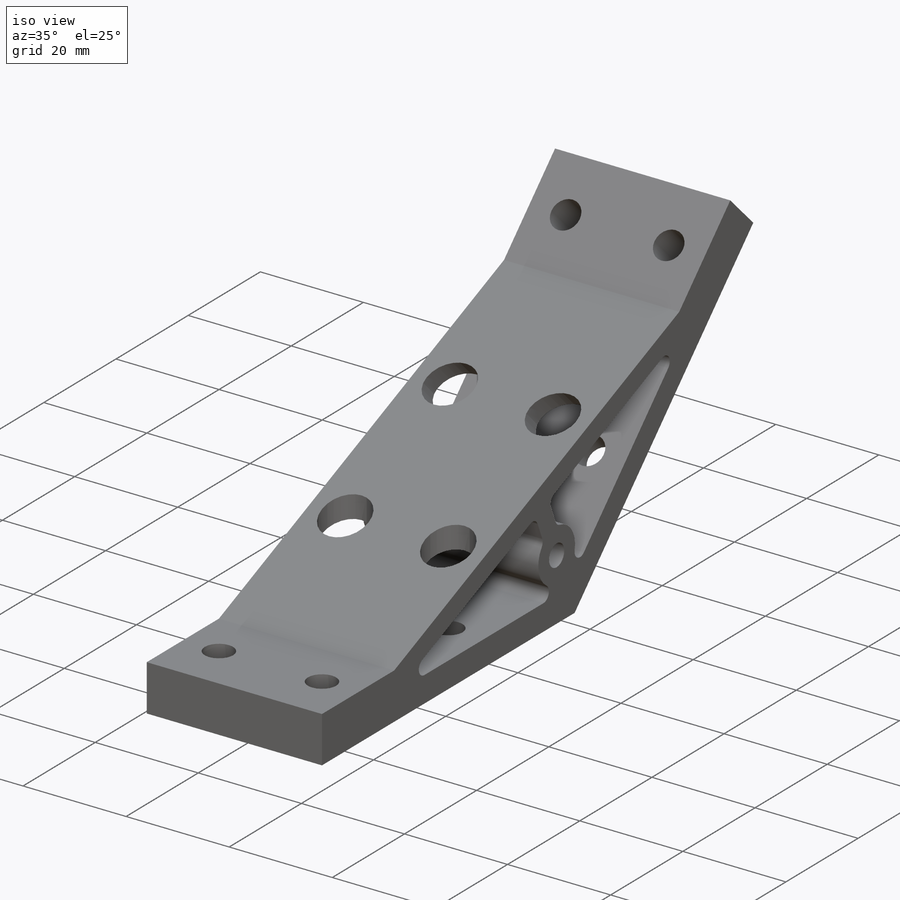
[diagram: iso view]
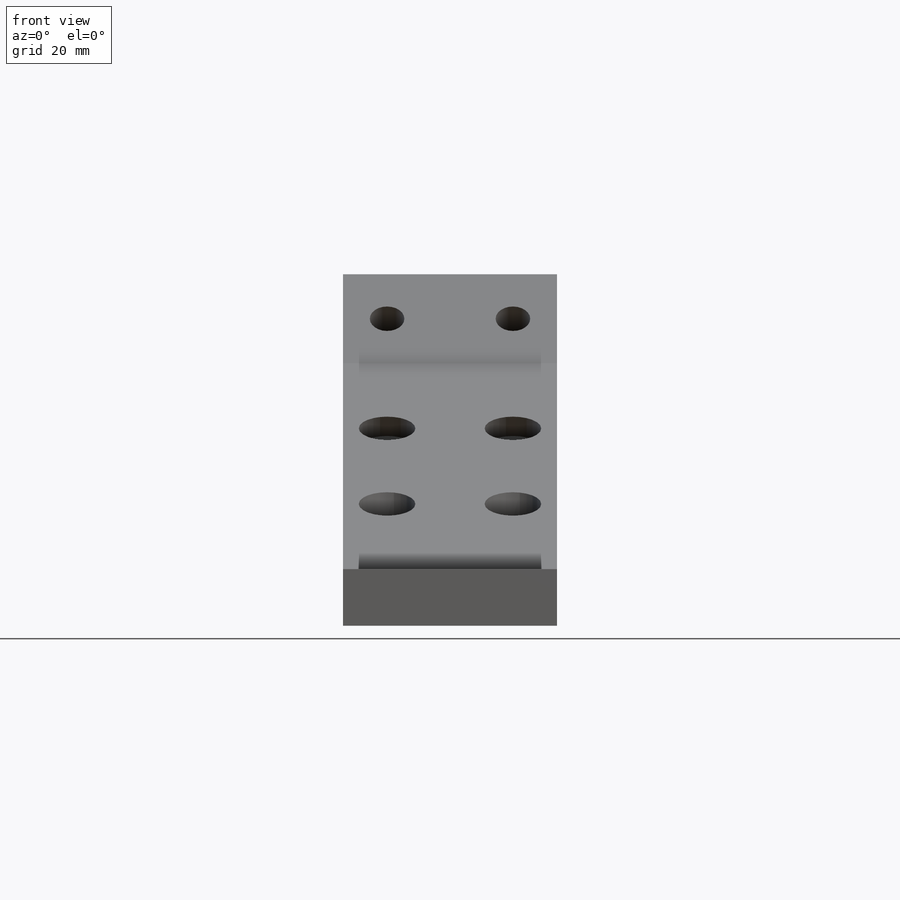
[diagram: front view]
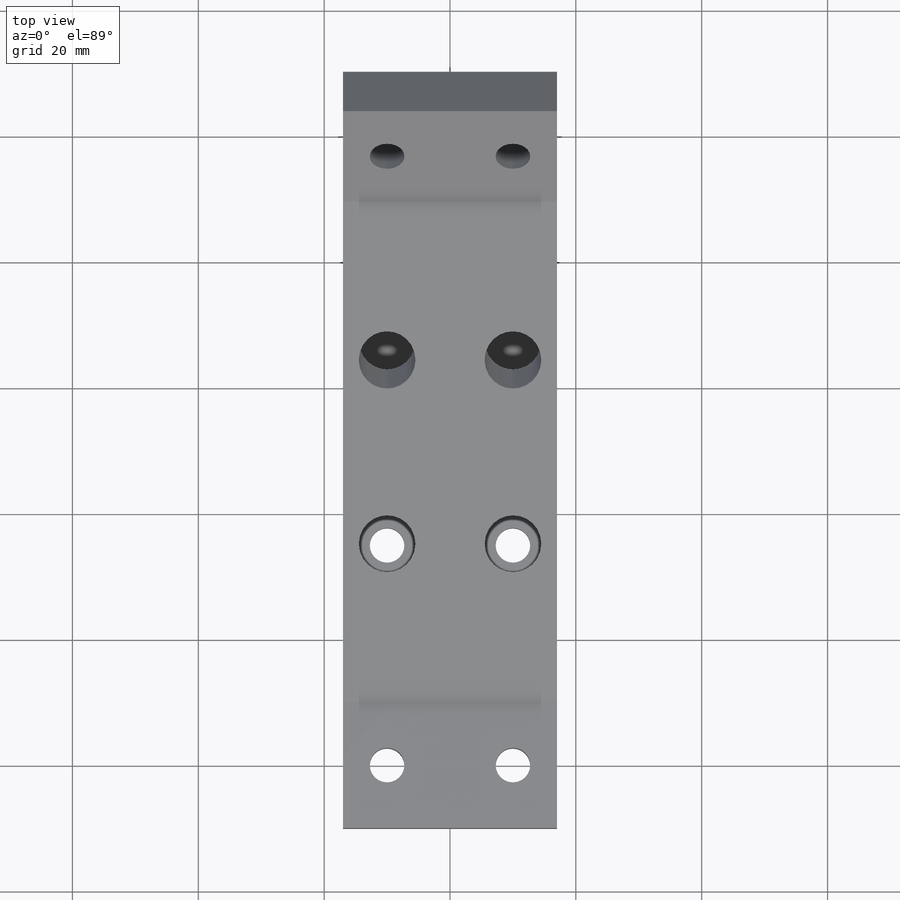
[diagram: top view]
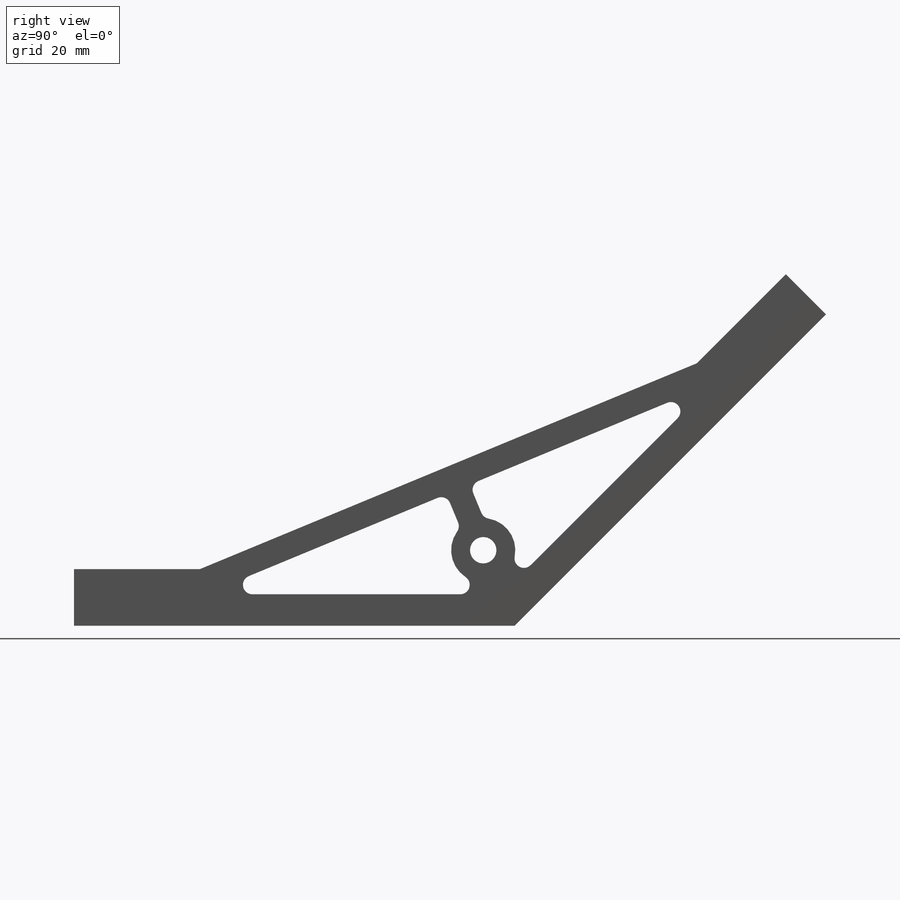
[diagram: right view]
SOLIDWORKS PART (.sldprt)
format: sldprt  version: not decoded by parser v0  size: 354,304 bytes
history: native  units: mm
features: plane x9, sketch x9, cut_revolve x6, cut_extrude x2, material x1, extrude x1 (+16 scaffold rows collapsed)
feature tree (44):
  scaffold x16  (default folders/planes/origin — collapsed)
  material  "1060 Alloy"
  plane  "Plane1"
  sketch  "Sketch1"  dims[c1.D5=4.2mm c1.D7=5.1mm c1.D8=1.5mm c1.D12=1.5mm c1.D1=~38.506881mm c2.D1=~157.497789deg c3.D1=~16.83685mm c4.D1=22.5deg c4.D2=70.0mm c4.D3=9.0mm c4.D4=20.0mm c4.D6=12.0mm c4.D9=5.0mm c4.D10=4.0mm c4.D11=~3.364847mm c5.D11=~179.994261deg c6.D11=4.0mm]
  extrude  "Boss-Extrude1"  Depth=17mm
  plane  "Plane2"
  sketch  "Sketch2"  dims[D3=5.5mm D1=10.0mm D2=60.0mm]
  cut_extrude  "Cut-Extrude1"  Depth=9mm
  plane  "Plane3"
  sketch  "Sketch3"
  cut_extrude  "Cut-Extrude2"  Depth=9mm
  plane  "Plane4"
  sketch  "Sketch4"  dims[D1=25.0mm D2=5.5mm D3=9.0mm D4=9.0mm D5=30.0mm]
  cut_revolve  "Cut-Revolve1"  Angle=360deg
  plane  "Plane5"
  sketch  "Sketch5"  dims[D1=25.0mm D2=5.5mm D3=9.0mm D4=9.0mm D5=30.0mm]
  cut_revolve  "Cut-Revolve2"  Angle=360deg
  plane  "Plane6"
  sketch  "Sketch6"
  cut_revolve  "Cut-Revolve3"  Angle=360deg
  plane  "Plane7"
  sketch  "Sketch7"  dims[D1=25.0mm D2=9.0mm D3=5.5mm D4=9.0mm D5=30.0mm]
  cut_revolve  "Cut-Revolve4"  Angle=360deg
  plane  "Plane8"
  sketch  "Sketch8"  dims[D1=60.0mm D2=5.5mm]
  cut_revolve  "Cut-Revolve5"  Angle=360deg
  plane  "Plane9"
  sketch  "Sketch9"  dims[D1=60.0mm D2=5.5mm]
  cut_revolve  "Cut-Revolve6"  Angle=360deg
decode coverage: 16 of 18 modeling features carry decoded parameters
note: ~ marks probable driven/reference dimensions
note: suppression state not decoded; provenance and decode notes live in map.json
